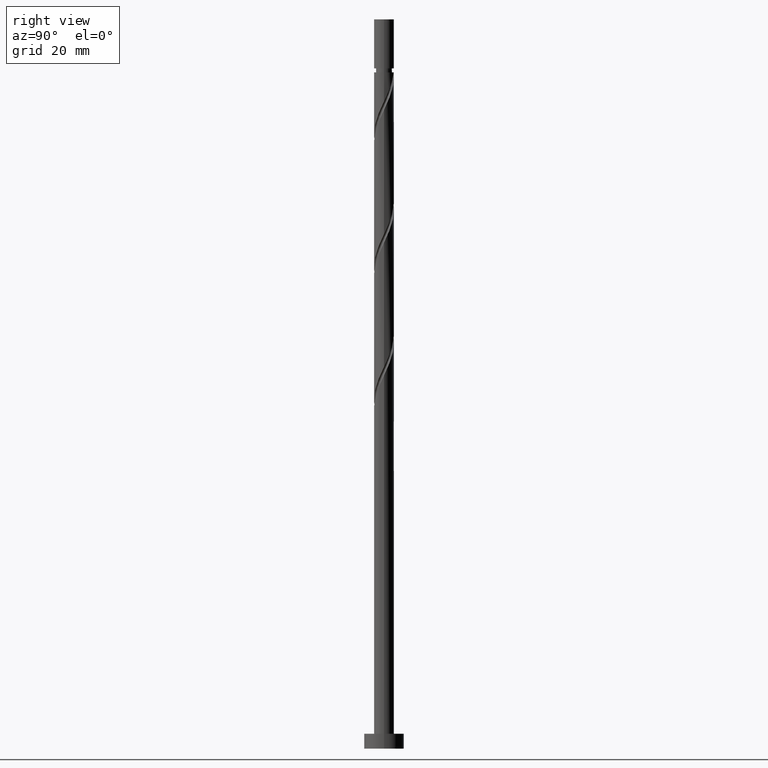
[diagram: clean part render]
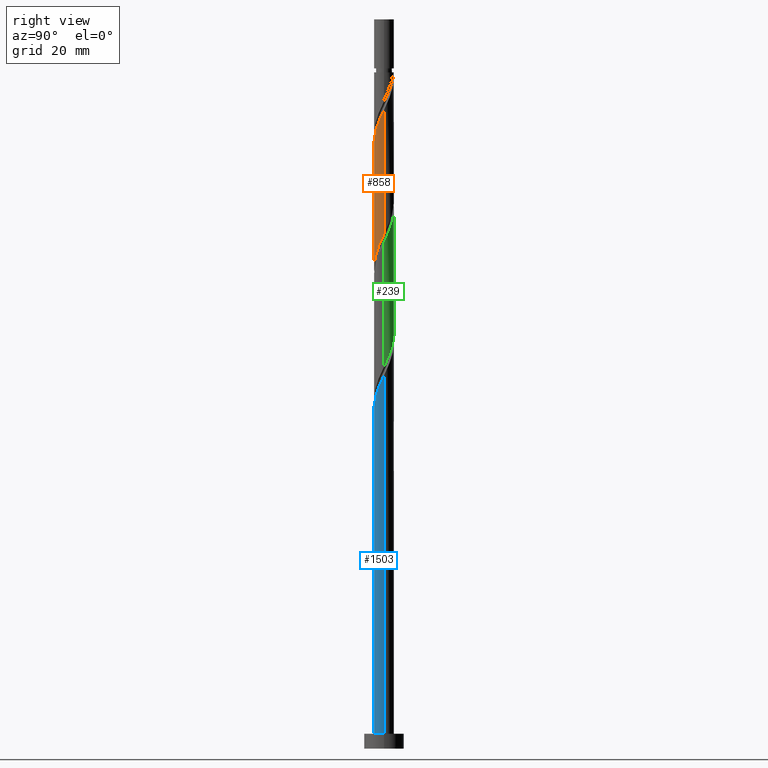
[diagram: same view with three faces highlighted in distinct colors, each labeled with its STEP entity id]
A machine part, right view with three faces highlighted in distinct colors.
Their STEP definitions:

[orange] entity #858 — the highlighted cylindrical surface (edge-blend (fillet) strip) has radius 2 mm, axis along (-0, -0, -1).
#58 = CARTESIAN_POINT ( 'NONE',  ( 0.9928482695149669635, -1.759812803970227879, 98.87408541184120736 ) ) ;
#78 = CARTESIAN_POINT ( 'NONE',  ( 1.448427499289742348, -1.408810338760219771, 100.0862066239624397 ) ) ;
#100 = CARTESIAN_POINT ( 'NONE',  ( 2.000000000000000000, 2.449293598294706414E-16, 146.5000000000000000 ) ) ;
#110 = CARTESIAN_POINT ( 'NONE',  ( -1.220637884402356432, -1.584311571365225602, 118.8740854118411931 ) ) ;
#199 = CARTESIAN_POINT ( 'NONE',  ( -2.000000000000003109, -9.647149353755143079E-16, 114.9943279022372877 ) ) ;
#205 = CARTESIAN_POINT ( 'NONE',  ( -0.1161895186125007778, -2.017223038501448240, 96.44984298759877106 ) ) ;
#228 = DIRECTION ( 'NONE',  ( -0.000000000000000000, -0.000000000000000000, -1.000000000000000000 ) ) ;
#238 = CARTESIAN_POINT ( 'NONE',  ( 0.6798004310727959743, -1.902776961498555020, 123.1165096542654425 ) ) ;
#258 = CARTESIAN_POINT ( 'NONE',  ( -1.883409435608319304, -0.6728810428757545647, 116.4498429875987711 ) ) ;
#263 = CARTESIAN_POINT ( 'NONE',  ( -1.786663747202085206, -0.9436744384215547399, 117.0559035936594086 ) ) ;
#310 = CARTESIAN_POINT ( 'NONE',  ( 2.000000000000003109, 8.899308318580325832E-16, 128.3276612355706163 ) ) ;
#311 = EDGE_CURVE ( 'NONE', #1219, #433, #1250, .T. ) ;
#330 = CARTESIAN_POINT ( 'NONE',  ( 1.220637884402354656, -1.584311571365223825, 99.48014601790183065 ) ) ;
#344 = CARTESIAN_POINT ( 'NONE',  ( 1.883409435608316862, -0.6728810428757546758, 101.9043884421442385 ) ) ;
#369 = EDGE_LOOP ( 'NONE', ( #798, #1062, #1420, #1436 ) ) ;
#371 = CARTESIAN_POINT ( 'NONE',  ( -1.980155124014554291, -0.4020876473299551113, 115.8437823815381904 ) ) ;
#377 = CARTESIAN_POINT ( 'NONE',  ( 0.1161895186125000562, -2.017223038501451349, 121.9043884421442385 ) ) ;
#389 = CARTESIAN_POINT ( 'NONE',  ( -2.000000000000000000, 1.533074122108385710E-15, 90.02657019417240747 ) ) ;
#403 = CARTESIAN_POINT ( 'NONE',  ( 1.883197487972274597, -0.7322950311120155487, 126.7528732906291253 ) ) ;
#433 = VERTEX_POINT ( 'NONE', #1256 ) ;
#461 = CARTESIAN_POINT ( 'NONE',  ( 2.000000000000000000, -1.974300332861531101E-15, 103.3599035275057361 ) ) ;
#517 = CARTESIAN_POINT ( 'NONE',  ( -0.7248413235775382768, -1.864029252891266086, 120.0862066239623829 ) ) ;
#554 = CYLINDRICAL_SURFACE ( 'NONE', #1567, 2.000000000000000000 ) ;
#566 = CARTESIAN_POINT ( 'NONE',  ( -0.3979949748426482303, -1.959999999999999964, 95.84378238153817620 ) ) ;
#568 = CARTESIAN_POINT ( 'NONE',  ( 2.000000000000003997, -0.2290578547702425138, 127.8417012825993595 ) ) ;
#575 = FACE_OUTER_BOUND ( 'NONE', #369, .T. ) ;
#588 = CARTESIAN_POINT ( 'NONE',  ( 0.000000000000000000, 0.000000000000000000, 146.5000000000000000 ) ) ;
#674 = CARTESIAN_POINT ( 'NONE',  ( -0.9340691933046014750, -1.768478086411955585, 94.63166116941695805 ) ) ;
#680 = VECTOR ( 'NONE', #228, 1000.000000000000000 ) ;
#689 = CARTESIAN_POINT ( 'NONE',  ( -1.999999999999998668, -0.2290578547702505907, 90.51253014714373535 ) ) ;
#746 = CARTESIAN_POINT ( 'NONE',  ( 0.9340691933046018081, -1.768478086411958028, 123.7225702603260515 ) ) ;
#750 =( BOUNDED_CURVE ( )  B_SPLINE_CURVE ( 2, ( #461, #967, #1491, #1071, #344, #1480, #1368, #78, #330, #58, #947, #1598, #1459, #205, #566, #1081, #674, #1199, #818, #1587, #1361, #1334, #1471, #689, #838 ),
 .UNSPECIFIED., .F., .F. ) 
 B_SPLINE_CURVE_WITH_KNOTS ( ( 3, 2, 2, 2, 2, 2, 2, 2, 2, 2, 2, 2, 3 ),
 ( 0.5545252162417512176, 0.5568181818181817677, 0.5681818181818182323, 0.5795454545454545858, 0.5909090909090909394, 0.6022727272727272929, 0.6136363636363636465, 0.6250000000000000000, 0.6363636363636363535, 0.6477272727272727071, 0.6590909090909090606, 0.6704545454545454142, 0.6795252162417511066 ),
 .UNSPECIFIED. ) 
 CURVE ( )  GEOMETRIC_REPRESENTATION_ITEM ( )  RATIONAL_B_SPLINE_CURVE ( ( 0.9061101570135583483, 0.9072237824201405676, 0.9090909090909180534, 0.8998376744372204028, 0.9090909090909180534, 0.8998376744372204028, 0.9090909090909180534, 0.8998376744372204028, 0.9090909090909180534, 0.8998376744372204028, 0.9090909090909180534, 0.8998376744372204028, 0.9090909090909180534, 0.8998376744372204028, 0.9090909090909180534, 0.8998376744372204028, 0.9090909090909180534, 0.8998376744372204028, 0.9090909090909180534, 0.8998376744372204028, 0.9090909090909180534, 0.8998376744372204028, 0.9090909090909180534, 0.9017048011079979997, 0.9061101570135583483 ) ) 
 REPRESENTATION_ITEM ( '' )  );
#760 = CARTESIAN_POINT ( 'NONE',  ( -0.1703224295138033029, -1.992734370156876489, 121.2983278360836294 ) ) ;
#765 = CARTESIAN_POINT ( 'NONE',  ( -1.617545623245914665, -1.176242388590887700, 117.6619641997199608 ) ) ;
#798 = ORIENTED_EDGE ( 'NONE', *, *, #311, .F. ) ;
#818 = CARTESIAN_POINT ( 'NONE',  ( -1.394470680848406197, -1.433684595806965723, 93.41953995729578253 ) ) ;
#838 = CARTESIAN_POINT ( 'NONE',  ( -2.000000000000000000, 1.533074122108385710E-15, 90.02657019417240747 ) ) ;
#858 = ADVANCED_FACE ( 'NONE', ( #575 ), #554, .T. ) ;
#882 = EDGE_CURVE ( 'NONE', #433, #936, #750, .T. ) ;
#886 = DIRECTION ( 'NONE',  ( -0.000000000000000000, -0.000000000000000000, -1.000000000000000000 ) ) ;
#900 = CARTESIAN_POINT ( 'NONE',  ( -2.000000000000003109, -0.05755105304764572549, 115.1164259069555271 ) ) ;
#936 = VERTEX_POINT ( 'NONE', #389 ) ;
#947 = CARTESIAN_POINT ( 'NONE',  ( 0.7248413235775366115, -1.864029252891264754, 98.26802480578064092 ) ) ;
#967 = CARTESIAN_POINT ( 'NONE',  ( 2.000000000000000000, -0.05755105304764324831, 103.2378055227875251 ) ) ;
#986 = EDGE_CURVE ( 'NONE', #1384, #1219, #1513, .T. ) ;
#1013 = CARTESIAN_POINT ( 'NONE',  ( -2.000000000000003109, -9.647149353755145051E-16, 114.9943279022373019 ) ) ;
#1030 = CARTESIAN_POINT ( 'NONE',  ( -0.4568343776401067591, -1.968245701812304516, 120.6922672300230062 ) ) ;
#1037 = CARTESIAN_POINT ( 'NONE',  ( 1.948211798543802775, -0.4521844623765088889, 127.3589338966896776 ) ) ;
#1062 = ORIENTED_EDGE ( 'NONE', *, *, #986, .F. ) ;
#1071 = CARTESIAN_POINT ( 'NONE',  ( 1.980155124014550738, -0.4020876473299552223, 102.5104490482048334 ) ) ;
#1081 = CARTESIAN_POINT ( 'NONE',  ( -0.6798004310727957522, -1.902776961498551689, 95.23772177547755291 ) ) ;
#1090 = DIRECTION ( 'NONE',  ( -0.000000000000000000, -0.000000000000000000, -1.000000000000000000 ) ) ;
#1091 = VECTOR ( 'NONE', #886, 1000.000000000000000 ) ;
#1103 = DIRECTION ( 'NONE',  ( -1.000000000000000000, 0.000000000000000000, 0.000000000000000000 ) ) ;
#1199 = CARTESIAN_POINT ( 'NONE',  ( -1.188337955536407309, -1.634179211325359038, 94.02560056335636318 ) ) ;
#1219 = VERTEX_POINT ( 'NONE', #310 ) ;
#1250 = LINE ( 'NONE', #100, #1091 ) ;
#1256 = CARTESIAN_POINT ( 'NONE',  ( 2.000000000000000000, -1.974300332861531101E-15, 103.3599035275057361 ) ) ;
#1259 = CARTESIAN_POINT ( 'NONE',  ( 1.188337955536409085, -1.634179211325361258, 124.3286308663866464 ) ) ;
#1271 = CARTESIAN_POINT ( 'NONE',  ( 0.3979949748426480083, -1.960000000000003073, 122.5104490482048050 ) ) ;
#1278 = EDGE_CURVE ( 'NONE', #1384, #936, #1488, .T. ) ;
#1280 = CARTESIAN_POINT ( 'NONE',  ( -0.9928482695149695170, -1.759812803970229877, 119.4801460179018164 ) ) ;
#1285 = CARTESIAN_POINT ( 'NONE',  ( -1.448427499289744569, -1.408810338760221326, 118.2680248057805983 ) ) ;
#1334 = CARTESIAN_POINT ( 'NONE',  ( -1.883197487972271711, -0.7322950311120145495, 91.60135813911394109 ) ) ;
#1337 = CARTESIAN_POINT ( 'NONE',  ( 1.741900447066339952, -0.9827425057002958653, 126.1468126845684878 ) ) ;
#1361 = CARTESIAN_POINT ( 'NONE',  ( -1.741900447066338398, -0.9827425057002938669, 92.20741874517456438 ) ) ;
#1368 = CARTESIAN_POINT ( 'NONE',  ( 1.617545623245912667, -1.176242388590886589, 100.6922672300230488 ) ) ;
#1384 = VERTEX_POINT ( 'NONE', #199 ) ;
#1394 = CARTESIAN_POINT ( 'NONE',  ( 1.394470680848407529, -1.433684595806968387, 124.9346914724472413 ) ) ;
#1400 = CARTESIAN_POINT ( 'NONE',  ( 1.600603406160406861, -1.233189980288575516, 125.5407520785078788 ) ) ;
#1420 = ORIENTED_EDGE ( 'NONE', *, *, #1278, .T. ) ;
#1436 = ORIENTED_EDGE ( 'NONE', *, *, #882, .F. ) ;
#1459 = CARTESIAN_POINT ( 'NONE',  ( 0.1703224295138022759, -1.992734370156874713, 97.05590359365939435 ) ) ;
#1471 = CARTESIAN_POINT ( 'NONE',  ( -1.948211798543800555, -0.4521844623765079452, 90.99529753305334623 ) ) ;
#1480 = CARTESIAN_POINT ( 'NONE',  ( 1.786663747202082320, -0.9436744384215535186, 101.2983278360836294 ) ) ;
#1488 = LINE ( 'NONE', #1496, #680 ) ;
#1491 = CARTESIAN_POINT ( 'NONE',  ( 1.996690616564939402, -0.1150068768444770795, 103.1165096542654567 ) ) ;
#1496 = CARTESIAN_POINT ( 'NONE',  ( -2.000000000000000000, 0.000000000000000000, 146.5000000000000000 ) ) ;
#1513 =( BOUNDED_CURVE ( )  B_SPLINE_CURVE ( 2, ( #1013, #900, #1659, #371, #258, #263, #765, #1285, #110, #1280, #517, #1030, #760, #377, #1271, #238, #746, #1259, #1394, #1400, #1337, #403, #1037, #568, #1553 ),
 .UNSPECIFIED., .F., .T. ) 
 B_SPLINE_CURVE_WITH_KNOTS ( ( 3, 2, 2, 2, 2, 2, 2, 2, 2, 2, 2, 2, 3 ),
 ( 0.5545252162417514397, 0.5568181818181818787, 0.5681818181818181213, 0.5795454545454545858, 0.5909090909090908283, 0.6022727272727272929, 0.6136363636363636465, 0.6250000000000000000, 0.6363636363636363535, 0.6477272727272727071, 0.6590909090909091717, 0.6704545454545454142, 0.6795252162417515507 ),
 .UNSPECIFIED. ) 
 CURVE ( )  GEOMETRIC_REPRESENTATION_ITEM ( )  RATIONAL_B_SPLINE_CURVE ( ( 0.9061101570135647876, 0.9072237824201468959, 0.9090909090909243817, 0.8998376744372265090, 0.9090909090909243817, 0.8998376744372265090, 0.9090909090909243817, 0.8998376744372265090, 0.9090909090909243817, 0.8998376744372265090, 0.9090909090909243817, 0.8998376744372265090, 0.9090909090909243817, 0.8998376744372265090, 0.9090909090909243817, 0.8998376744372265090, 0.9090909090909243817, 0.8998376744372265090, 0.9090909090909243817, 0.8998376744372265090, 0.9090909090909243817, 0.8998376744372265090, 0.9090909090909243817, 0.9017048011080038838, 0.9061101570135648986 ) ) 
 REPRESENTATION_ITEM ( '' )  );
#1553 = CARTESIAN_POINT ( 'NONE',  ( 2.000000000000003109, 8.899308318580325832E-16, 128.3276612355706163 ) ) ;
#1567 = AXIS2_PLACEMENT_3D ( 'NONE', #588, #1090, #1103 ) ;
#1587 = CARTESIAN_POINT ( 'NONE',  ( -1.600603406160404640, -1.233189980288572851, 92.81347935123514503 ) ) ;
#1598 = CARTESIAN_POINT ( 'NONE',  ( 0.4568343776401062040, -1.968245701812301407, 97.66196419972001763 ) ) ;
#1659 = CARTESIAN_POINT ( 'NONE',  ( -1.996690616564942955, -0.1150068768444763440, 115.2377217754775671 ) ) ;

[blue] entity #1503 — the highlighted cylindrical surface (edge-blend (fillet) strip) has radius 2 mm, axis along (-0, -0, -1).
#6 = CARTESIAN_POINT ( 'NONE',  ( 1.188337955536409085, -1.634179211325361258, 70.99529753305333202 ) ) ;
#41 = AXIS2_PLACEMENT_3D ( 'NONE', #345, #336, #1481 ) ;
#109 = VERTEX_POINT ( 'NONE', #1031 ) ;
#125 = AXIS2_PLACEMENT_3D ( 'NONE', #744, #1012, #481 ) ;
#137 = CARTESIAN_POINT ( 'NONE',  ( 0.3979949748426480083, -1.960000000000003073, 69.17711571487151900 ) ) ;
#139 = ORIENTED_EDGE ( 'NONE', *, *, #1174, .T. ) ;
#229 = ORIENTED_EDGE ( 'NONE', *, *, #676, .T. ) ;
#235 = CYLINDRICAL_SURFACE ( 'NONE', #125, 2.000000000000000000 ) ;
#236 = ORIENTED_EDGE ( 'NONE', *, *, #1360, .F. ) ;
#253 = CARTESIAN_POINT ( 'NONE',  ( -1.448427499289744569, -1.408810338760221326, 64.93469147244728390 ) ) ;
#307 = EDGE_LOOP ( 'NONE', ( #236, #1344, #139, #229 ) ) ;
#313 = CIRCLE ( 'NONE', #41, 2.000000000000000000 ) ;
#336 = DIRECTION ( 'NONE',  ( 0.000000000000000000, 0.000000000000000000, 1.000000000000000000 ) ) ;
#345 = CARTESIAN_POINT ( 'NONE',  ( 0.000000000000000000, 0.000000000000000000, 3.000000000000000000 ) ) ;
#346 = DIRECTION ( 'NONE',  ( -0.000000000000000000, -0.000000000000000000, -1.000000000000000000 ) ) ;
#481 = DIRECTION ( 'NONE',  ( -1.000000000000000000, 0.000000000000000000, 0.000000000000000000 ) ) ;
#498 = CARTESIAN_POINT ( 'NONE',  ( 0.1161895186125000562, -2.017223038501451349, 68.57105510881089572 ) ) ;
#533 = CARTESIAN_POINT ( 'NONE',  ( -2.000000000000000000, 0.000000000000000000, 3.000000000000000000 ) ) ;
#613 = FACE_OUTER_BOUND ( 'NONE', #307, .T. ) ;
#615 = CARTESIAN_POINT ( 'NONE',  ( -1.980155124014554291, -0.4020876473299551113, 62.51044904820485471 ) ) ;
#622 = CARTESIAN_POINT ( 'NONE',  ( -2.000000000000003109, -0.05755105304764430996, 61.78309257362215590 ) ) ;
#626 = VECTOR ( 'NONE', #346, 1000.000000000000000 ) ;
#628 = CARTESIAN_POINT ( 'NONE',  ( -1.617545623245914665, -1.176242388590887700, 64.32863086638664640 ) ) ;
#632 = CARTESIAN_POINT ( 'NONE',  ( -1.883409435608319304, -0.6728810428757545647, 63.11650965426544957 ) ) ;
#637 = CARTESIAN_POINT ( 'NONE',  ( -0.9928482695149695170, -1.759812803970229877, 66.14681268456848784 ) ) ;
#676 = EDGE_CURVE ( 'NONE', #1122, #753, #313, .T. ) ;
#694 =( BOUNDED_CURVE ( )  B_SPLINE_CURVE ( 2, ( #1663, #622, #888, #615, #632, #1006, #628, #253, #1018, #637, #1151, #1653, #1412, #498, #137, #880, #1521, #6, #1405, #1139, #1157, #1545, #770, #1023, #871 ),
 .UNSPECIFIED., .F., .T. ) 
 B_SPLINE_CURVE_WITH_KNOTS ( ( 3, 2, 2, 2, 2, 2, 2, 2, 2, 2, 2, 2, 3 ),
 ( 0.05452521624175129394, 0.05681818181818176772, 0.06818181818181823228, 0.07954545454545458583, 0.09090909090909093937, 0.1022727272727272929, 0.1136363636363636465, 0.1250000000000000000, 0.1363636363636363535, 0.1477272727272727071, 0.1590909090909090606, 0.1704545454545454142, 0.1795252162417512731 ),
 .UNSPECIFIED. ) 
 CURVE ( )  GEOMETRIC_REPRESENTATION_ITEM ( )  RATIONAL_B_SPLINE_CURVE ( ( 0.9061101570135646766, 0.9072237824201468959, 0.9090909090909243817, 0.8998376744372265090, 0.9090909090909243817, 0.8998376744372265090, 0.9090909090909243817, 0.8998376744372265090, 0.9090909090909243817, 0.8998376744372265090, 0.9090909090909243817, 0.8998376744372265090, 0.9090909090909243817, 0.8998376744372265090, 0.9090909090909243817, 0.8998376744372265090, 0.9090909090909243817, 0.8998376744372265090, 0.9090909090909243817, 0.8998376744372265090, 0.9090909090909243817, 0.8998376744372265090, 0.9090909090909243817, 0.9017048011080039949, 0.9061101570135645655 ) ) 
 REPRESENTATION_ITEM ( '' )  );
#711 = CARTESIAN_POINT ( 'NONE',  ( 2.000000000000000000, 2.449293598294706414E-16, 3.000000000000000000 ) ) ;
#744 = CARTESIAN_POINT ( 'NONE',  ( 0.000000000000000000, 0.000000000000000000, 146.5000000000000000 ) ) ;
#753 = VERTEX_POINT ( 'NONE', #711 ) ;
#770 = CARTESIAN_POINT ( 'NONE',  ( 1.948211798543802775, -0.4521844623765088889, 74.02560056335634897 ) ) ;
#871 = CARTESIAN_POINT ( 'NONE',  ( 2.000000000000003109, 8.899308318580325832E-16, 74.99432790223728773 ) ) ;
#880 = CARTESIAN_POINT ( 'NONE',  ( 0.6798004310727959743, -1.902776961498555020, 69.78317632093212808 ) ) ;
#888 = CARTESIAN_POINT ( 'NONE',  ( -1.996690616564942955, -0.1150068768444763440, 61.90438844214423852 ) ) ;
#929 = EDGE_CURVE ( 'NONE', #109, #1246, #694, .T. ) ;
#969 = CARTESIAN_POINT ( 'NONE',  ( 2.000000000000000000, 2.449293598294706414E-16, 146.5000000000000000 ) ) ;
#990 = LINE ( 'NONE', #969, #626 ) ;
#1006 = CARTESIAN_POINT ( 'NONE',  ( -1.786663747202085206, -0.9436744384215547399, 63.72257026032605864 ) ) ;
#1012 = DIRECTION ( 'NONE',  ( -0.000000000000000000, -0.000000000000000000, -1.000000000000000000 ) ) ;
#1018 = CARTESIAN_POINT ( 'NONE',  ( -1.220637884402356432, -1.584311571365225602, 65.54075207850787876 ) ) ;
#1023 = CARTESIAN_POINT ( 'NONE',  ( 2.000000000000002665, -0.2290578547702471213, 74.50836794926598827 ) ) ;
#1031 = CARTESIAN_POINT ( 'NONE',  ( -2.000000000000003109, -9.647149353755143079E-16, 61.66099456890395203 ) ) ;
#1061 = DIRECTION ( 'NONE',  ( -0.000000000000000000, -0.000000000000000000, -1.000000000000000000 ) ) ;
#1093 = CARTESIAN_POINT ( 'NONE',  ( 2.000000000000003109, 8.899308318580325832E-16, 74.99432790223730194 ) ) ;
#1122 = VERTEX_POINT ( 'NONE', #533 ) ;
#1139 = CARTESIAN_POINT ( 'NONE',  ( 1.600603406160406861, -1.233189980288575516, 72.20741874517455017 ) ) ;
#1151 = CARTESIAN_POINT ( 'NONE',  ( -0.7248413235775382768, -1.864029252891266086, 66.75287329062908270 ) ) ;
#1157 = CARTESIAN_POINT ( 'NONE',  ( 1.741900447066339952, -0.9827425057002958653, 72.81347935123511661 ) ) ;
#1174 = EDGE_CURVE ( 'NONE', #109, #1122, #1292, .T. ) ;
#1246 = VERTEX_POINT ( 'NONE', #1093 ) ;
#1292 = LINE ( 'NONE', #1590, #1651 ) ;
#1344 = ORIENTED_EDGE ( 'NONE', *, *, #929, .F. ) ;
#1360 = EDGE_CURVE ( 'NONE', #1246, #753, #990, .T. ) ;
#1405 = CARTESIAN_POINT ( 'NONE',  ( 1.394470680848407529, -1.433684595806968387, 71.60135813911394109 ) ) ;
#1412 = CARTESIAN_POINT ( 'NONE',  ( -0.1703224295138033029, -1.992734370156876489, 67.96499450275030085 ) ) ;
#1481 = DIRECTION ( 'NONE',  ( 1.000000000000000000, 0.000000000000000000, 0.000000000000000000 ) ) ;
#1503 = ADVANCED_FACE ( 'NONE', ( #613 ), #235, .T. ) ;
#1521 = CARTESIAN_POINT ( 'NONE',  ( 0.9340691933046018081, -1.768478086411958028, 70.38923692699270873 ) ) ;
#1545 = CARTESIAN_POINT ( 'NONE',  ( 1.883197487972274597, -0.7322950311120155487, 73.41953995729575411 ) ) ;
#1590 = CARTESIAN_POINT ( 'NONE',  ( -2.000000000000000000, 0.000000000000000000, 146.5000000000000000 ) ) ;
#1651 = VECTOR ( 'NONE', #1061, 1000.000000000000000 ) ;
#1653 = CARTESIAN_POINT ( 'NONE',  ( -0.4568343776401067591, -1.968245701812304516, 67.35893389668969178 ) ) ;
#1663 = CARTESIAN_POINT ( 'NONE',  ( -2.000000000000003109, -9.647149353755143079E-16, 61.66099456890395203 ) ) ;

[green] entity #239 — the highlighted cylindrical surface (edge-blend (fillet) strip) has radius 2 mm, axis along (-0, -0, -1).
#35 = CARTESIAN_POINT ( 'NONE',  ( 1.786663747202085650, 0.9436744384215539627, 103.7225702603260657 ) ) ;
#56 = FACE_OUTER_BOUND ( 'NONE', #1607, .T. ) ;
#87 = ORIENTED_EDGE ( 'NONE', *, *, #1278, .F. ) ;
#119 = CARTESIAN_POINT ( 'NONE',  ( 0.9340691933046015860, 1.768478086411955585, 81.29832783608364366 ) ) ;
#126 = CARTESIAN_POINT ( 'NONE',  ( 1.948211798543800555, 0.4521844623765074456, 77.66196419971998921 ) ) ;
#131 = CARTESIAN_POINT ( 'NONE',  ( 2.000000000000000000, -1.974300332861531101E-15, 76.69323686083907887 ) ) ;
#154 =( BOUNDED_CURVE ( )  B_SPLINE_CURVE ( 2, ( #1322, #1589, #690, #567, #155, #35, #1082, #664, #924, #543, #1437, #948, #1060, #1576, #445, #322, #168, #958, #830, #1346, #197, #653, #555, #436, #1175 ),
 .UNSPECIFIED., .F., .F. ) 
 B_SPLINE_CURVE_WITH_KNOTS ( ( 3, 2, 2, 2, 2, 2, 2, 2, 2, 2, 2, 2, 3 ),
 ( 0.4295252162417511066, 0.4318181818181817677, 0.4431818181818182323, 0.4545454545454545858, 0.4659090909090909394, 0.4772727272727272929, 0.4886363636363636465, 0.5000000000000000000, 0.5113636363636363535, 0.5227272727272727071, 0.5340909090909091717, 0.5454545454545454142, 0.5545252162417514397 ),
 .UNSPECIFIED. ) 
 CURVE ( )  GEOMETRIC_REPRESENTATION_ITEM ( )  RATIONAL_B_SPLINE_CURVE ( ( 0.9061101570135644545, 0.9072237824201466738, 0.9090909090909243817, 0.8998376744372265090, 0.9090909090909243817, 0.8998376744372265090, 0.9090909090909243817, 0.8998376744372265090, 0.9090909090909243817, 0.8998376744372265090, 0.9090909090909243817, 0.8998376744372265090, 0.9090909090909243817, 0.8998376744372265090, 0.9090909090909243817, 0.8998376744372265090, 0.9090909090909243817, 0.8998376744372265090, 0.9090909090909243817, 0.8998376744372265090, 0.9090909090909243817, 0.8998376744372265090, 0.9090909090909243817, 0.9017048011080039949, 0.9061101570135647876 ) ) 
 REPRESENTATION_ITEM ( '' )  );
#155 = CARTESIAN_POINT ( 'NONE',  ( 1.883409435608319304, 0.6728810428757542317, 103.1165096542654425 ) ) ;
#168 = CARTESIAN_POINT ( 'NONE',  ( -0.9340691933046022521, 1.768478086411957584, 110.3892369269926945 ) ) ;
#196 = CARTESIAN_POINT ( 'NONE',  ( -1.883409435608316862, 0.6728810428757543427, 88.57105510881093835 ) ) ;
#197 = CARTESIAN_POINT ( 'NONE',  ( -1.741900447066340174, 0.9827425057002956432, 112.8134793512351024 ) ) ;
#199 = CARTESIAN_POINT ( 'NONE',  ( -2.000000000000003109, -9.647149353755143079E-16, 114.9943279022372877 ) ) ;
#214 = CARTESIAN_POINT ( 'NONE',  ( 2.000000000000003109, 8.899308318580325832E-16, 101.6609945689039449 ) ) ;
#228 = DIRECTION ( 'NONE',  ( -0.000000000000000000, -0.000000000000000000, -1.000000000000000000 ) ) ;
#239 = ADVANCED_FACE ( 'NONE', ( #56 ), #1079, .T. ) ;
#248 = CARTESIAN_POINT ( 'NONE',  ( 0.3979949748426484524, 1.959999999999999964, 82.51044904820487602 ) ) ;
#320 = CARTESIAN_POINT ( 'NONE',  ( -1.996690616564939846, 0.1150068768444767603, 89.78317632093212808 ) ) ;
#322 = CARTESIAN_POINT ( 'NONE',  ( -0.6798004310727961963, 1.902776961498554575, 109.7831763209321139 ) ) ;
#335 = CARTESIAN_POINT ( 'NONE',  ( -0.9928482695149674075, 1.759812803970227879, 85.54075207850787876 ) ) ;
#382 = CARTESIAN_POINT ( 'NONE',  ( 1.394470680848406197, 1.433684595806965945, 80.08620662396243972 ) ) ;
#389 = CARTESIAN_POINT ( 'NONE',  ( -2.000000000000000000, 1.533074122108385710E-15, 90.02657019417240747 ) ) ;
#436 = CARTESIAN_POINT ( 'NONE',  ( -2.000000000000003109, 0.2290578547702454004, 114.5083679492660025 ) ) ;
#445 = CARTESIAN_POINT ( 'NONE',  ( -0.3979949748426477862, 1.960000000000003073, 109.1771157148715048 ) ) ;
#490 = CARTESIAN_POINT ( 'NONE',  ( 1.188337955536407309, 1.634179211325358816, 80.69226723002304880 ) ) ;
#503 = CARTESIAN_POINT ( 'NONE',  ( 1.883197487972271933, 0.7322950311120133282, 78.26802480578061250 ) ) ;
#509 = CARTESIAN_POINT ( 'NONE',  ( 2.000000000000000444, 0.2290578547702443735, 77.17919681381039254 ) ) ;
#515 =( BOUNDED_CURVE ( )  B_SPLINE_CURVE ( 2, ( #1354, #957, #320, #829, #196, #700, #710, #1227, #972, #335, #1643, #1528, #1386, #1144, #248, #1130, #119, #490, #382, #754, #1266, #503, #126, #509, #131 ),
 .UNSPECIFIED., .F., .F. ) 
 B_SPLINE_CURVE_WITH_KNOTS ( ( 3, 2, 2, 2, 2, 2, 2, 2, 2, 2, 2, 2, 3 ),
 ( 0.6795252162417511066, 0.6818181818181817677, 0.6931818181818182323, 0.7045454545454545858, 0.7159090909090909394, 0.7272727272727272929, 0.7386363636363636465, 0.7500000000000000000, 0.7613636363636363535, 0.7727272727272727071, 0.7840909090909090606, 0.7954545454545454142, 0.8045252162417513286 ),
 .UNSPECIFIED. ) 
 CURVE ( )  GEOMETRIC_REPRESENTATION_ITEM ( )  RATIONAL_B_SPLINE_CURVE ( ( 0.9061101570135583483, 0.9072237824201404566, 0.9090909090909180534, 0.8998376744372204028, 0.9090909090909180534, 0.8998376744372204028, 0.9090909090909180534, 0.8998376744372204028, 0.9090909090909180534, 0.8998376744372204028, 0.9090909090909180534, 0.8998376744372204028, 0.9090909090909180534, 0.8998376744372204028, 0.9090909090909180534, 0.8998376744372204028, 0.9090909090909180534, 0.8998376744372204028, 0.9090909090909180534, 0.8998376744372204028, 0.9090909090909180534, 0.8998376744372204028, 0.9090909090909180534, 0.9017048011079978886, 0.9061101570135584593 ) ) 
 REPRESENTATION_ITEM ( '' )  );
#543 = CARTESIAN_POINT ( 'NONE',  ( 0.9928482695149686288, 1.759812803970230322, 106.1468126845685020 ) ) ;
#544 = LINE ( 'NONE', #1461, #1198 ) ;
#555 = CARTESIAN_POINT ( 'NONE',  ( -1.948211798543802775, 0.4521844623765091664, 114.0256005633563490 ) ) ;
#556 = DIRECTION ( 'NONE',  ( -0.000000000000000000, -0.000000000000000000, -1.000000000000000000 ) ) ;
#559 = EDGE_CURVE ( 'NONE', #846, #1384, #154, .T. ) ;
#567 = CARTESIAN_POINT ( 'NONE',  ( 1.980155124014554291, 0.4020876473299548337, 102.5104490482048902 ) ) ;
#621 = ORIENTED_EDGE ( 'NONE', *, *, #1173, .T. ) ;
#653 = CARTESIAN_POINT ( 'NONE',  ( -1.883197487972274375, 0.7322950311120159927, 113.4195399572957541 ) ) ;
#664 = CARTESIAN_POINT ( 'NONE',  ( 1.448427499289745235, 1.408810338760220882, 104.9346914724472981 ) ) ;
#680 = VECTOR ( 'NONE', #228, 1000.000000000000000 ) ;
#690 = CARTESIAN_POINT ( 'NONE',  ( 1.996690616564942955, 0.1150068768444761219, 101.9043884421442243 ) ) ;
#700 = CARTESIAN_POINT ( 'NONE',  ( -1.786663747202082320, 0.9436744384215536297, 87.96499450275030085 ) ) ;
#710 = CARTESIAN_POINT ( 'NONE',  ( -1.617545623245912001, 1.176242388590886589, 87.35893389668969178 ) ) ;
#754 = CARTESIAN_POINT ( 'NONE',  ( 1.600603406160404418, 1.233189980288573295, 79.48014601790181644 ) ) ;
#827 = DIRECTION ( 'NONE',  ( -0.000000000000000000, -0.000000000000000000, -1.000000000000000000 ) ) ;
#829 = CARTESIAN_POINT ( 'NONE',  ( -1.980155124014550738, 0.4020876473299550002, 89.17711571487151900 ) ) ;
#830 = CARTESIAN_POINT ( 'NONE',  ( -1.394470680848407529, 1.433684595806968387, 111.6013581391139269 ) ) ;
#846 = VERTEX_POINT ( 'NONE', #214 ) ;
#853 = ORIENTED_EDGE ( 'NONE', *, *, #899, .F. ) ;
#899 = EDGE_CURVE ( 'NONE', #936, #1321, #515, .T. ) ;
#914 = DIRECTION ( 'NONE',  ( -1.000000000000000000, 0.000000000000000000, 0.000000000000000000 ) ) ;
#924 = CARTESIAN_POINT ( 'NONE',  ( 1.220637884402356432, 1.584311571365226046, 105.5407520785078361 ) ) ;
#936 = VERTEX_POINT ( 'NONE', #389 ) ;
#948 = CARTESIAN_POINT ( 'NONE',  ( 0.4568343776401070366, 1.968245701812304072, 107.3589338966897060 ) ) ;
#957 = CARTESIAN_POINT ( 'NONE',  ( -2.000000000000000000, 0.05755105304764007029, 89.90447218945415386 ) ) ;
#958 = CARTESIAN_POINT ( 'NONE',  ( -1.188337955536408641, 1.634179211325361480, 110.9952975330533604 ) ) ;
#972 = CARTESIAN_POINT ( 'NONE',  ( -1.220637884402354656, 1.584311571365223825, 86.14681268456848784 ) ) ;
#1058 = ORIENTED_EDGE ( 'NONE', *, *, #559, .F. ) ;
#1060 = CARTESIAN_POINT ( 'NONE',  ( 0.1703224295138035527, 1.992734370156876489, 107.9649945027502866 ) ) ;
#1079 = CYLINDRICAL_SURFACE ( 'NONE', #1113, 2.000000000000000000 ) ;
#1082 = CARTESIAN_POINT ( 'NONE',  ( 1.617545623245914665, 1.176242388590887478, 104.3286308663866322 ) ) ;
#1113 = AXIS2_PLACEMENT_3D ( 'NONE', #1596, #827, #914 ) ;
#1130 = CARTESIAN_POINT ( 'NONE',  ( 0.6798004310727959743, 1.902776961498551689, 81.90438844214422431 ) ) ;
#1144 = CARTESIAN_POINT ( 'NONE',  ( 0.1161895186125002227, 2.017223038501447796, 83.11650965426547089 ) ) ;
#1173 = EDGE_CURVE ( 'NONE', #846, #1321, #544, .T. ) ;
#1175 = CARTESIAN_POINT ( 'NONE',  ( -2.000000000000003109, -9.647149353755145051E-16, 114.9943279022373019 ) ) ;
#1198 = VECTOR ( 'NONE', #556, 1000.000000000000000 ) ;
#1227 = CARTESIAN_POINT ( 'NONE',  ( -1.448427499289741682, 1.408810338760219993, 86.75287329062908270 ) ) ;
#1229 = CARTESIAN_POINT ( 'NONE',  ( 2.000000000000000000, -1.974300332861531101E-15, 76.69323686083907887 ) ) ;
#1266 = CARTESIAN_POINT ( 'NONE',  ( 1.741900447066337954, 0.9827425057002944220, 78.87408541184120736 ) ) ;
#1278 = EDGE_CURVE ( 'NONE', #1384, #936, #1488, .T. ) ;
#1321 = VERTEX_POINT ( 'NONE', #1229 ) ;
#1322 = CARTESIAN_POINT ( 'NONE',  ( 2.000000000000003109, 8.899308318580325832E-16, 101.6609945689039449 ) ) ;
#1346 = CARTESIAN_POINT ( 'NONE',  ( -1.600603406160406861, 1.233189980288575072, 112.2074187451745075 ) ) ;
#1354 = CARTESIAN_POINT ( 'NONE',  ( -2.000000000000000000, 1.533074122108385710E-15, 90.02657019417240747 ) ) ;
#1384 = VERTEX_POINT ( 'NONE', #199 ) ;
#1386 = CARTESIAN_POINT ( 'NONE',  ( -0.1703224295138028310, 1.992734370156874713, 83.72257026032605154 ) ) ;
#1437 = CARTESIAN_POINT ( 'NONE',  ( 0.7248413235775373886, 1.864029252891266530, 106.7528732906290685 ) ) ;
#1461 = CARTESIAN_POINT ( 'NONE',  ( 2.000000000000000000, 2.449293598294706414E-16, 146.5000000000000000 ) ) ;
#1488 = LINE ( 'NONE', #1496, #680 ) ;
#1496 = CARTESIAN_POINT ( 'NONE',  ( -2.000000000000000000, 0.000000000000000000, 146.5000000000000000 ) ) ;
#1528 = CARTESIAN_POINT ( 'NONE',  ( -0.4568343776401058709, 1.968245701812301851, 84.32863086638664640 ) ) ;
#1576 = CARTESIAN_POINT ( 'NONE',  ( -0.1161895186124997786, 2.017223038501451349, 108.5710551088109383 ) ) ;
#1589 = CARTESIAN_POINT ( 'NONE',  ( 2.000000000000003109, 0.05755105304763947355, 101.7830925736221701 ) ) ;
#1596 = CARTESIAN_POINT ( 'NONE',  ( 0.000000000000000000, 0.000000000000000000, 146.5000000000000000 ) ) ;
#1607 = EDGE_LOOP ( 'NONE', ( #1058, #621, #853, #87 ) ) ;
#1643 = CARTESIAN_POINT ( 'NONE',  ( -0.7248413235775366115, 1.864029252891264754, 84.93469147244729811 ) ) ;